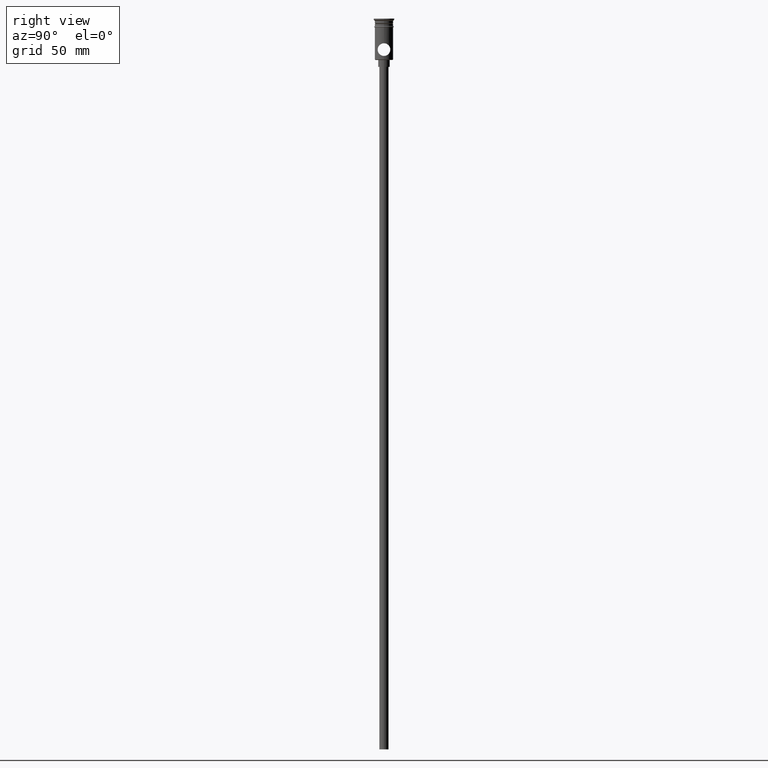
[diagram: clean part render]
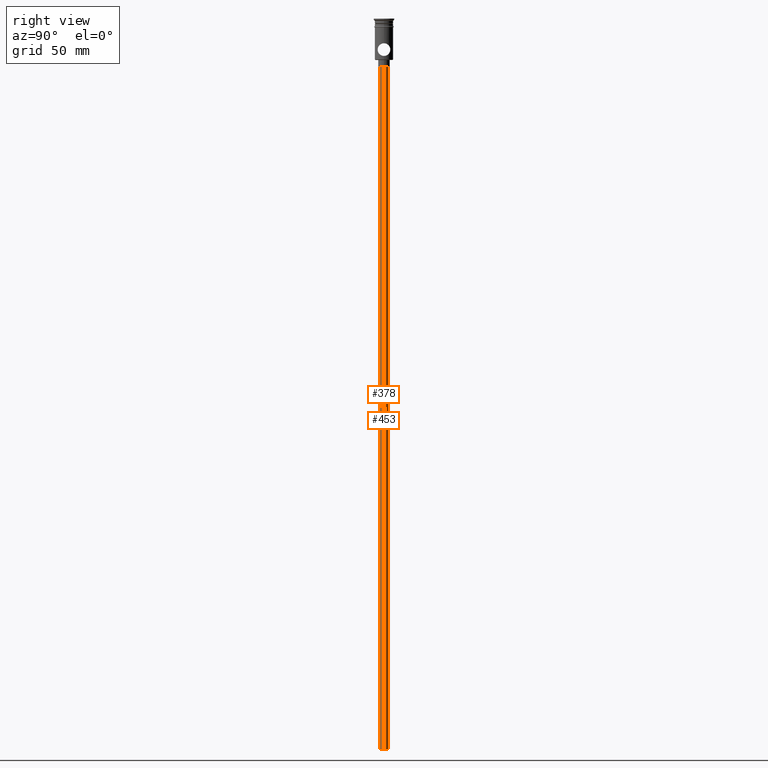
[diagram: same view with one multi-face feature highlighted, each face labeled with its STEP entity id]
A machine part, right view. The highlighted faces form ONE feature: a constant-radius fillet chain: 2 tangent blend faces with common blend radius 2 mm. The faces share edges in the B-rep.
Their STEP definitions:
[1] entity #378 (Cylinder):
#76 = CARTESIAN_POINT ( 'NONE',  ( 2.000000000000000000, 0.000000000000000000, -318.0000000000000000 ) ) ;
#101 = CARTESIAN_POINT ( 'NONE',  ( -2.000000000000000000, 2.449293598294706414E-16, -318.0000000000000000 ) ) ;
#125 = ORIENTED_EDGE ( 'NONE', *, *, #579, .F. ) ;
#181 = ORIENTED_EDGE ( 'NONE', *, *, #323, .T. ) ;
#252 = ORIENTED_EDGE ( 'NONE', *, *, #472, .T. ) ;
#322 = DIRECTION ( 'NONE',  ( -0.000000000000000000, -0.000000000000000000, 1.000000000000000000 ) ) ;
#323 = EDGE_CURVE ( 'NONE', #658, #1192, #1275, .T. ) ;
#342 = DIRECTION ( 'NONE',  ( -1.000000000000000000, 0.000000000000000000, 0.000000000000000000 ) ) ;
#346 = EDGE_LOOP ( 'NONE', ( #1137, #125, #252, #181 ) ) ;
#378 = ADVANCED_FACE ( 'NONE', ( #614 ), #930, .T. ) ;
#399 = VECTOR ( 'NONE', #322, 1000.000000000000000 ) ;
#416 = LINE ( 'NONE', #101, #957 ) ;
#422 = DIRECTION ( 'NONE',  ( 0.000000000000000000, 0.000000000000000000, -1.000000000000000000 ) ) ;
#462 = CARTESIAN_POINT ( 'NONE',  ( 2.000000000000000000, 0.000000000000000000, -20.99999999999999645 ) ) ;
#472 = EDGE_CURVE ( 'NONE', #752, #658, #514, .T. ) ;
#514 = LINE ( 'NONE', #969, #399 ) ;
#523 = EDGE_CURVE ( 'NONE', #960, #1192, #416, .T. ) ;
#579 = EDGE_CURVE ( 'NONE', #752, #960, #1255, .T. ) ;
#583 = DIRECTION ( 'NONE',  ( 0.000000000000000000, 0.000000000000000000, -1.000000000000000000 ) ) ;
#614 = FACE_OUTER_BOUND ( 'NONE', #346, .T. ) ;
#658 = VERTEX_POINT ( 'NONE', #462 ) ;
#702 = AXIS2_PLACEMENT_3D ( 'NONE', #1368, #1378, #1394 ) ;
#708 = CARTESIAN_POINT ( 'NONE',  ( -2.000000000000000000, 2.449293598294706414E-16, -20.99999999999999645 ) ) ;
#752 = VERTEX_POINT ( 'NONE', #76 ) ;
#804 = CARTESIAN_POINT ( 'NONE',  ( 0.000000000000000000, 0.000000000000000000, -20.99999999999999645 ) ) ;
#865 = DIRECTION ( 'NONE',  ( -1.000000000000000000, 0.000000000000000000, 0.000000000000000000 ) ) ;
#869 = CARTESIAN_POINT ( 'NONE',  ( -2.000000000000000000, 2.449293598294706414E-16, -318.0000000000000000 ) ) ;
#930 = CYLINDRICAL_SURFACE ( 'NONE', #702, 2.000000000000000000 ) ;
#957 = VECTOR ( 'NONE', #1181, 1000.000000000000000 ) ;
#960 = VERTEX_POINT ( 'NONE', #869 ) ;
#969 = CARTESIAN_POINT ( 'NONE',  ( 2.000000000000000000, 0.000000000000000000, -318.0000000000000000 ) ) ;
#1137 = ORIENTED_EDGE ( 'NONE', *, *, #523, .F. ) ;
#1161 = AXIS2_PLACEMENT_3D ( 'NONE', #1421, #422, #865 ) ;
#1181 = DIRECTION ( 'NONE',  ( -0.000000000000000000, -0.000000000000000000, 1.000000000000000000 ) ) ;
#1192 = VERTEX_POINT ( 'NONE', #708 ) ;
#1206 = AXIS2_PLACEMENT_3D ( 'NONE', #804, #583, #342 ) ;
#1255 = CIRCLE ( 'NONE', #1161, 2.000000000000000000 ) ;
#1275 = CIRCLE ( 'NONE', #1206, 2.000000000000000000 ) ;
#1368 = CARTESIAN_POINT ( 'NONE',  ( 0.000000000000000000, 0.000000000000000000, -318.0000000000000000 ) ) ;
#1378 = DIRECTION ( 'NONE',  ( -0.000000000000000000, -0.000000000000000000, 1.000000000000000000 ) ) ;
#1394 = DIRECTION ( 'NONE',  ( 1.000000000000000000, 0.000000000000000000, 0.000000000000000000 ) ) ;
#1421 = CARTESIAN_POINT ( 'NONE',  ( 0.000000000000000000, 0.000000000000000000, -318.0000000000000000 ) ) ;
[2] entity #453 (Cylinder):
#76 = CARTESIAN_POINT ( 'NONE',  ( 2.000000000000000000, 0.000000000000000000, -318.0000000000000000 ) ) ;
#101 = CARTESIAN_POINT ( 'NONE',  ( -2.000000000000000000, 2.449293598294706414E-16, -318.0000000000000000 ) ) ;
#120 = DIRECTION ( 'NONE',  ( 0.000000000000000000, 0.000000000000000000, -1.000000000000000000 ) ) ;
#189 = CYLINDRICAL_SURFACE ( 'NONE', #586, 2.000000000000000000 ) ;
#233 = DIRECTION ( 'NONE',  ( 0.000000000000000000, 0.000000000000000000, -1.000000000000000000 ) ) ;
#322 = DIRECTION ( 'NONE',  ( -0.000000000000000000, -0.000000000000000000, 1.000000000000000000 ) ) ;
#331 = ORIENTED_EDGE ( 'NONE', *, *, #472, .F. ) ;
#399 = VECTOR ( 'NONE', #322, 1000.000000000000000 ) ;
#416 = LINE ( 'NONE', #101, #957 ) ;
#453 = ADVANCED_FACE ( 'NONE', ( #628 ), #189, .T. ) ;
#462 = CARTESIAN_POINT ( 'NONE',  ( 2.000000000000000000, 0.000000000000000000, -20.99999999999999645 ) ) ;
#466 = CIRCLE ( 'NONE', #770, 2.000000000000000000 ) ;
#472 = EDGE_CURVE ( 'NONE', #752, #658, #514, .T. ) ;
#514 = LINE ( 'NONE', #969, #399 ) ;
#523 = EDGE_CURVE ( 'NONE', #960, #1192, #416, .T. ) ;
#551 = ORIENTED_EDGE ( 'NONE', *, *, #523, .T. ) ;
#582 = DIRECTION ( 'NONE',  ( -1.000000000000000000, 0.000000000000000000, 0.000000000000000000 ) ) ;
#586 = AXIS2_PLACEMENT_3D ( 'NONE', #875, #849, #1310 ) ;
#589 = CIRCLE ( 'NONE', #937, 2.000000000000000000 ) ;
#616 = EDGE_CURVE ( 'NONE', #1192, #658, #466, .T. ) ;
#628 = FACE_OUTER_BOUND ( 'NONE', #1333, .T. ) ;
#658 = VERTEX_POINT ( 'NONE', #462 ) ;
#708 = CARTESIAN_POINT ( 'NONE',  ( -2.000000000000000000, 2.449293598294706414E-16, -20.99999999999999645 ) ) ;
#752 = VERTEX_POINT ( 'NONE', #76 ) ;
#770 = AXIS2_PLACEMENT_3D ( 'NONE', #1019, #120, #1012 ) ;
#781 = CARTESIAN_POINT ( 'NONE',  ( 0.000000000000000000, 0.000000000000000000, -318.0000000000000000 ) ) ;
#849 = DIRECTION ( 'NONE',  ( -0.000000000000000000, -0.000000000000000000, 1.000000000000000000 ) ) ;
#869 = CARTESIAN_POINT ( 'NONE',  ( -2.000000000000000000, 2.449293598294706414E-16, -318.0000000000000000 ) ) ;
#875 = CARTESIAN_POINT ( 'NONE',  ( 0.000000000000000000, 0.000000000000000000, -318.0000000000000000 ) ) ;
#937 = AXIS2_PLACEMENT_3D ( 'NONE', #781, #233, #582 ) ;
#957 = VECTOR ( 'NONE', #1181, 1000.000000000000000 ) ;
#960 = VERTEX_POINT ( 'NONE', #869 ) ;
#969 = CARTESIAN_POINT ( 'NONE',  ( 2.000000000000000000, 0.000000000000000000, -318.0000000000000000 ) ) ;
#1012 = DIRECTION ( 'NONE',  ( -1.000000000000000000, 0.000000000000000000, 0.000000000000000000 ) ) ;
#1017 = ORIENTED_EDGE ( 'NONE', *, *, #616, .T. ) ;
#1019 = CARTESIAN_POINT ( 'NONE',  ( 0.000000000000000000, 0.000000000000000000, -20.99999999999999645 ) ) ;
#1181 = DIRECTION ( 'NONE',  ( -0.000000000000000000, -0.000000000000000000, 1.000000000000000000 ) ) ;
#1192 = VERTEX_POINT ( 'NONE', #708 ) ;
#1310 = DIRECTION ( 'NONE',  ( 1.000000000000000000, 0.000000000000000000, 0.000000000000000000 ) ) ;
#1333 = EDGE_LOOP ( 'NONE', ( #1442, #551, #1017, #331 ) ) ;
#1386 = EDGE_CURVE ( 'NONE', #960, #752, #589, .T. ) ;
#1442 = ORIENTED_EDGE ( 'NONE', *, *, #1386, .F. ) ;